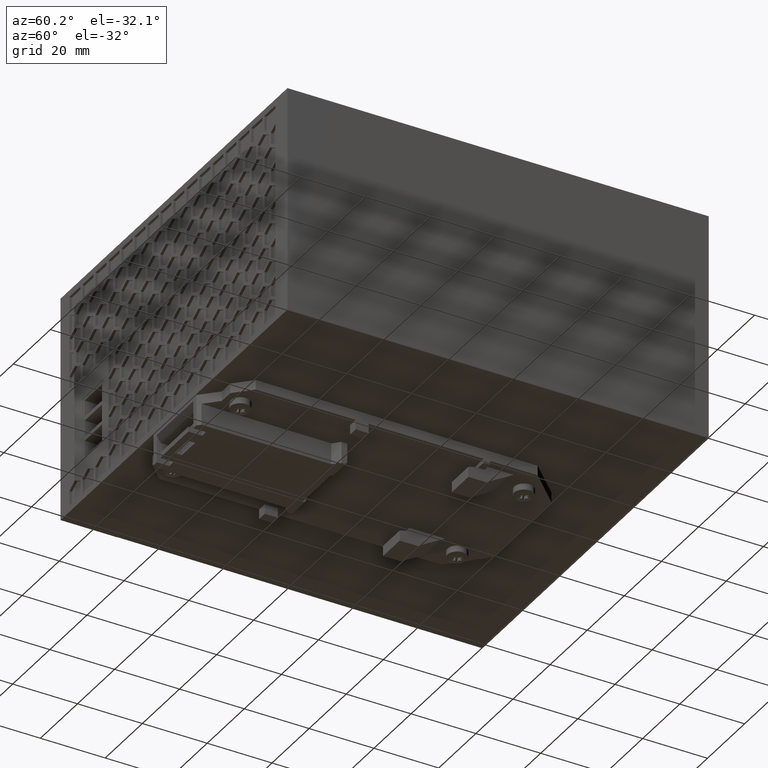
[diagram: clean part render]
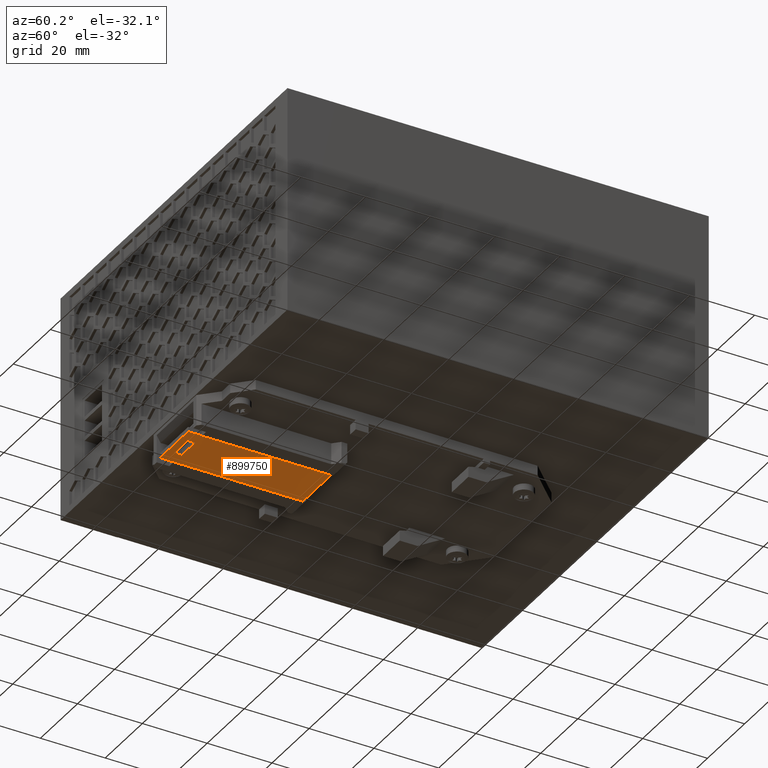
[diagram: same view with one face highlighted and labeled with its STEP entity id]
A machine part, auxiliary view. The second image highlights one B-rep face of the part: STEP entity #899750.
In plain terms, the highlighted planar face has unit normal (0, 0, -1).
Its self-contained STEP definition (entity closure, byte-faithful):
#850050=CARTESIAN_POINT('',(-9.5,53.4999999999897,-465.205708989799));
#850060=DIRECTION('',(0.,0.,-1.));
#850070=VECTOR('',#850060,1.);
#850080=LINE('',#850050,#850070);
#850090=CARTESIAN_POINT('',(-9.5,53.4999999999878,124.996849890801));
#850100=VERTEX_POINT('',#850090);
#850110=CARTESIAN_POINT('',(-9.5,53.4999999999897,85.0733805030461));
#850120=VERTEX_POINT('',#850110);
#850130=EDGE_CURVE('',#850100,#850120,#850080,.T.);
#896710=CARTESIAN_POINT('',(-9.5,57.4999999999878,127.046849890801));
#896720=VERTEX_POINT('',#896710);
#896750=CARTESIAN_POINT('',(-9.5,57.4999999999878,-465.205708989799));
#896760=DIRECTION('',(0.,0.,1.));
#896770=VECTOR('',#896760,1.);
#896780=LINE('',#896750,#896770);
#896790=CARTESIAN_POINT('',(-9.5,57.4999999999878,124.746849890801));
#896800=VERTEX_POINT('',#896790);
#896810=EDGE_CURVE('',#896800,#896720,#896780,.T.);
#897260=CARTESIAN_POINT('',(-9.5,53.4999999999878,129.146849890801));
#897270=VERTEX_POINT('',#897260);
#897300=CARTESIAN_POINT('',(-9.5,52.2499999999897,129.146849890801));
#897310=DIRECTION('',(0.,-1.,0.));
#897320=VECTOR('',#897310,1.);
#897330=LINE('',#897300,#897320);
#897340=CARTESIAN_POINT('',(-9.5,68.6999999999878,129.146849890801));
#897350=VERTEX_POINT('',#897340);
#897360=EDGE_CURVE('',#897350,#897270,#897330,.T.);
#898520=CARTESIAN_POINT('',(-9.5,68.6999999999878,124.996849890801));
#898530=VERTEX_POINT('',#898520);
#898800=CARTESIAN_POINT('',(-9.5,68.6999999999897,-465.205708989799));
#898810=DIRECTION('',(0.,0.,-1.));
#898820=VECTOR('',#898810,1.);
#898830=LINE('',#898800,#898820);
#898840=CARTESIAN_POINT('',(-9.5,68.6999999999897,85.0733805030458));
#898850=VERTEX_POINT('',#898840);
#898860=EDGE_CURVE('',#898530,#898850,#898830,.T.);
#899220=CARTESIAN_POINT('',(-9.5,53.0821999999878,130.286486625495));
#899230=DIRECTION('',(-1.,-0.,-0.));
#899240=DIRECTION('',(0.,0.,-1.));
#899250=AXIS2_PLACEMENT_3D('',#899220,#899230,#899240);
#899260=PLANE('',#899250);
#899270=CARTESIAN_POINT('',(-9.5,68.6999999999878,-465.205708989799));
#899280=DIRECTION('',(0.,0.,-1.));
#899290=VECTOR('',#899280,1.);
#899300=LINE('',#899270,#899290);
#899310=EDGE_CURVE('',#897350,#898530,#899300,.T.);
#899320=ORIENTED_EDGE('',*,*,#899310,.T.);
#899330=ORIENTED_EDGE('',*,*,#897360,.F.);
#899340=CARTESIAN_POINT('',(-9.5,53.4999999999878,-465.205708989799));
#899350=DIRECTION('',(0.,0.,-1.));
#899360=VECTOR('',#899350,1.);
#899370=LINE('',#899340,#899360);
#899380=EDGE_CURVE('',#897270,#850100,#899370,.T.);
#899390=ORIENTED_EDGE('',*,*,#899380,.F.);
#899400=ORIENTED_EDGE('',*,*,#850130,.F.);
#899410=CARTESIAN_POINT('',(-9.5,52.2499999999897,85.0733805030458));
#899420=DIRECTION('',(0.,-1.,0.));
#899430=VECTOR('',#899420,1.);
#899440=LINE('',#899410,#899430);
#899450=EDGE_CURVE('',#898850,#850120,#899440,.T.);
#899460=ORIENTED_EDGE('',*,*,#899450,.T.);
#899470=ORIENTED_EDGE('',*,*,#898860,.T.);
#899480=EDGE_LOOP('',(#899470,#899460,#899400,#899390,#899330,#899320));
#899490=FACE_OUTER_BOUND('',#899480,.T.);
#899500=ORIENTED_EDGE('',*,*,#896810,.F.);
#899510=CARTESIAN_POINT('',(-9.5,52.2499999999897,127.046849890801));
#899520=DIRECTION('',(0.,1.,0.));
#899530=VECTOR('',#899520,1.);
#899540=LINE('',#899510,#899530);
#899550=CARTESIAN_POINT('',(-9.5,64.6999999999878,127.046849890801));
#899560=VERTEX_POINT('',#899550);
#899570=EDGE_CURVE('',#896720,#899560,#899540,.T.);
#899580=ORIENTED_EDGE('',*,*,#899570,.F.);
#899590=CARTESIAN_POINT('',(-9.5,64.6999999999879,-465.205708989799));
#899600=DIRECTION('',(0.,0.,-1.));
#899610=VECTOR('',#899600,1.);
#899620=LINE('',#899590,#899610);
#899630=CARTESIAN_POINT('',(-9.5,64.6999999999879,124.746849890801));
#899640=VERTEX_POINT('',#899630);
#899650=EDGE_CURVE('',#899560,#899640,#899620,.T.);
#899660=ORIENTED_EDGE('',*,*,#899650,.F.);
#899670=CARTESIAN_POINT('',(-9.5,52.2499999999897,124.746849890801));
#899680=DIRECTION('',(0.,-1.,0.));
#899690=VECTOR('',#899680,1.);
#899700=LINE('',#899670,#899690);
#899710=EDGE_CURVE('',#899640,#896800,#899700,.T.);
#899720=ORIENTED_EDGE('',*,*,#899710,.F.);
#899730=EDGE_LOOP('',(#899720,#899660,#899580,#899500));
#899740=FACE_BOUND('',#899730,.T.);
#899750=ADVANCED_FACE('',(#899490,#899740),#899260,.T.);